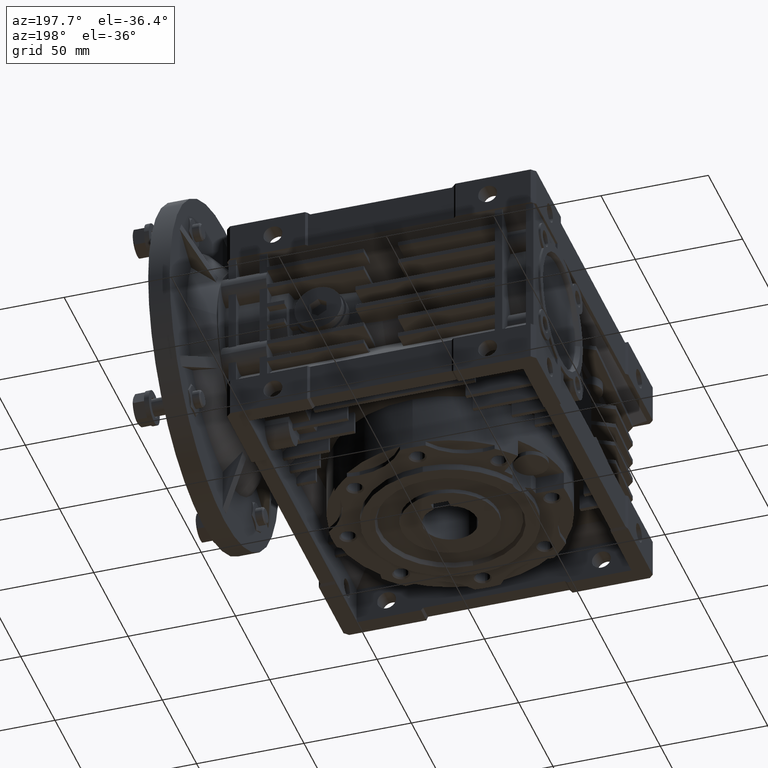
[diagram: clean part render]
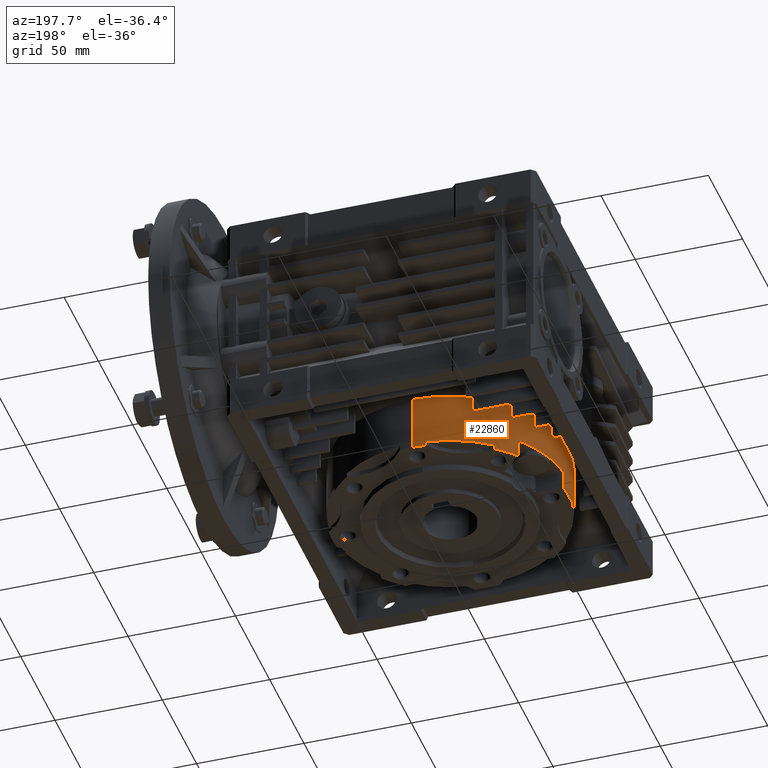
[diagram: same view with one face highlighted and labeled with its STEP entity id]
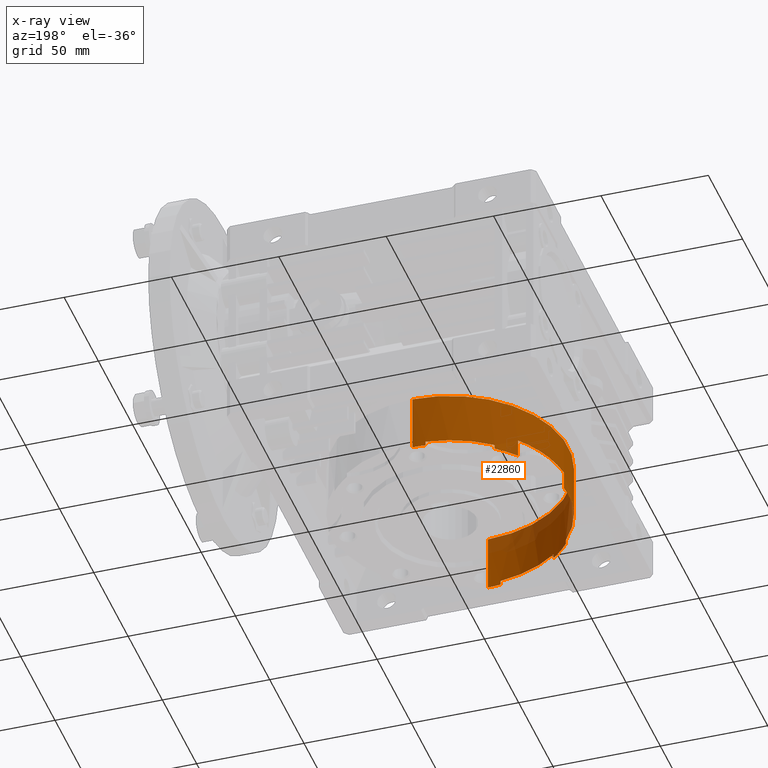
[diagram: x-ray of the same camera — body ghosted, the highlighted face saturated]
A machine part, auxiliary view. The second image highlights one B-rep face of the part: STEP entity #22860.
The next image is the same camera in x-ray: the body ghosted, the highlighted face saturated — about 11% of this face is hidden behind the body in this view.
In plain terms, the highlighted cylindrical surface (partial cylindrical patch) has radius 55 mm, axis along (0, 0, 1).
Its self-contained STEP definition (entity closure, byte-faithful):
#172 = DIRECTION ( 'NONE',  ( 0.000000000000000000, 1.000000000000000000, 0.000000000000000000 ) ) ;
#574 = DIRECTION ( 'NONE',  ( 0.000000000000000000, 0.000000000000000000, 1.000000000000000000 ) ) ;
#1051 = DIRECTION ( 'NONE',  ( 0.000000000000000000, 0.000000000000000000, -1.000000000000000000 ) ) ;
#1450 = CYLINDRICAL_SURFACE ( 'NONE', #19564, 55.00000000000000000 ) ;
#1588 = VERTEX_POINT ( 'NONE', #8071 ) ;
#1943 = LINE ( 'NONE', #17047, #5228 ) ;
#2164 = VECTOR ( 'NONE', #38606, 1000.000000000000000 ) ;
#2265 = AXIS2_PLACEMENT_3D ( 'NONE', #4134, #4639, #19014 ) ;
#2553 = CARTESIAN_POINT ( 'NONE',  ( 0.000000000000000000, 0.000000000000000000, -53.00000000000000000 ) ) ;
#2811 = CARTESIAN_POINT ( 'NONE',  ( 0.000000000000000000, 55.00000000000000000, -26.55000000000000071 ) ) ;
#2931 = EDGE_CURVE ( 'NONE', #9064, #8320, #21399, .T. ) ;
#2961 = CIRCLE ( 'NONE', #29381, 55.00000000000000000 ) ;
#3001 = CARTESIAN_POINT ( 'NONE',  ( -54.67156926801519745, -6.001625927414619532, -51.00000000000000000 ) ) ;
#3658 = VERTEX_POINT ( 'NONE', #6477 ) ;
#3728 = EDGE_CURVE ( 'NONE', #29326, #1588, #6010, .T. ) ;
#4134 = CARTESIAN_POINT ( 'NONE',  ( 0.000000000000000000, 0.000000000000000000, -51.00000000000000000 ) ) ;
#4226 = DIRECTION ( 'NONE',  ( 0.000000000000000000, 1.000000000000000000, 0.000000000000000000 ) ) ;
#4362 = DIRECTION ( 'NONE',  ( 0.000000000000000000, 0.000000000000000000, 1.000000000000000000 ) ) ;
#4389 = VECTOR ( 'NONE', #38037, 1000.000000000000000 ) ;
#4625 = ORIENTED_EDGE ( 'NONE', *, *, #3728, .T. ) ;
#4639 = DIRECTION ( 'NONE',  ( 0.000000000000000000, 0.000000000000000000, 1.000000000000000000 ) ) ;
#5105 = EDGE_CURVE ( 'NONE', #12362, #35046, #32606, .T. ) ;
#5156 = CARTESIAN_POINT ( 'NONE',  ( -54.71416635570719933, 5.599999999999999645, -56.00000000000000000 ) ) ;
#5228 = VECTOR ( 'NONE', #38220, 1000.000000000000000 ) ;
#5663 = DIRECTION ( 'NONE',  ( 0.000000000000000000, 0.000000000000000000, 1.000000000000000000 ) ) ;
#5715 = CARTESIAN_POINT ( 'NONE',  ( 0.000000000000000000, 0.000000000000000000, -51.00000000000000000 ) ) ;
#5834 = DIRECTION ( 'NONE',  ( 0.000000000000000000, 0.000000000000000000, 1.000000000000000000 ) ) ;
#6010 = CIRCLE ( 'NONE', #18465, 55.00000000000000000 ) ;
#6106 = AXIS2_PLACEMENT_3D ( 'NONE', #5715, #35694, #16923 ) ;
#6363 = DIRECTION ( 'NONE',  ( 0.000000000000000000, 0.000000000000000000, -1.000000000000000000 ) ) ;
#6477 = CARTESIAN_POINT ( 'NONE',  ( -34.41484697610369636, 42.90242775894350302, -53.00000000000000000 ) ) ;
#6929 = VERTEX_POINT ( 'NONE', #34714 ) ;
#7068 = CARTESIAN_POINT ( 'NONE',  ( 0.000000000000000000, 0.000000000000000000, -53.00000000000000000 ) ) ;
#8071 = CARTESIAN_POINT ( 'NONE',  ( -34.41484697610369636, 42.90242775894350302, -51.00000000000000000 ) ) ;
#8320 = VERTEX_POINT ( 'NONE', #45559 ) ;
#8403 = ORIENTED_EDGE ( 'NONE', *, *, #16039, .T. ) ;
#8533 = LINE ( 'NONE', #5156, #4389 ) ;
#8896 = DIRECTION ( 'NONE',  ( 0.000000000000000000, 0.000000000000000000, -1.000000000000000000 ) ) ;
#9064 = VERTEX_POINT ( 'NONE', #32355 ) ;
#9279 = CARTESIAN_POINT ( 'NONE',  ( -6.735557395310442615E-15, -55.00000000000000000, -53.00000000000000000 ) ) ;
#9537 = DIRECTION ( 'NONE',  ( 0.000000000000000000, 1.000000000000000000, 0.000000000000000000 ) ) ;
#9608 = ORIENTED_EDGE ( 'NONE', *, *, #47049, .F. ) ;
#9769 = VERTEX_POINT ( 'NONE', #9279 ) ;
#9791 = AXIS2_PLACEMENT_3D ( 'NONE', #46608, #13243, #28115 ) ;
#9987 = VECTOR ( 'NONE', #1051, 1000.000000000000000 ) ;
#10081 = VERTEX_POINT ( 'NONE', #31857 ) ;
#10110 = LINE ( 'NONE', #25683, #38600 ) ;
#10707 = DIRECTION ( 'NONE',  ( 0.000000000000000000, 1.000000000000000000, 0.000000000000000000 ) ) ;
#11490 = CIRCLE ( 'NONE', #41068, 55.00000000000000000 ) ;
#11862 = VECTOR ( 'NONE', #28042, 1000.000000000000000 ) ;
#12221 = CARTESIAN_POINT ( 'NONE',  ( -42.64855603173409548, 34.72896008244470067, -61.50000000000000000 ) ) ;
#12360 = CARTESIAN_POINT ( 'NONE',  ( -6.001625927414629302, -54.67156926801519745, -53.00000000000000000 ) ) ;
#12362 = VERTEX_POINT ( 'NONE', #28899 ) ;
#12733 = VERTEX_POINT ( 'NONE', #26663 ) ;
#12753 = LINE ( 'NONE', #41090, #2164 ) ;
#13243 = DIRECTION ( 'NONE',  ( 0.000000000000000000, 0.000000000000000000, 1.000000000000000000 ) ) ;
#13443 = EDGE_CURVE ( 'NONE', #15393, #6929, #10110, .T. ) ;
#13895 = LINE ( 'NONE', #18068, #36393 ) ;
#14024 = EDGE_CURVE ( 'NONE', #15069, #9064, #8533, .T. ) ;
#14108 = CIRCLE ( 'NONE', #38242, 55.00000000000000000 ) ;
#14285 = ORIENTED_EDGE ( 'NONE', *, *, #13443, .T. ) ;
#14653 = EDGE_CURVE ( 'NONE', #3658, #10081, #44020, .T. ) ;
#14693 = CARTESIAN_POINT ( 'NONE',  ( 0.000000000000000000, 55.00000000000000000, -53.00000000000000000 ) ) ;
#15069 = VERTEX_POINT ( 'NONE', #20389 ) ;
#15393 = VERTEX_POINT ( 'NONE', #26383 ) ;
#15643 = DIRECTION ( 'NONE',  ( 0.000000000000000000, 0.000000000000000000, -1.000000000000000000 ) ) ;
#15976 = ORIENTED_EDGE ( 'NONE', *, *, #34432, .T. ) ;
#16039 = EDGE_CURVE ( 'NONE', #35046, #32458, #13895, .T. ) ;
#16377 = CARTESIAN_POINT ( 'NONE',  ( 0.000000000000000000, 0.000000000000000000, -44.50000000000000000 ) ) ;
#16503 = EDGE_CURVE ( 'NONE', #9769, #36341, #12753, .T. ) ;
#16559 = EDGE_CURVE ( 'NONE', #36341, #35747, #2961, .T. ) ;
#16789 = DIRECTION ( 'NONE',  ( 0.000000000000000000, 0.000000000000000000, -1.000000000000000000 ) ) ;
#16923 = DIRECTION ( 'NONE',  ( 0.000000000000000000, 1.000000000000000000, 0.000000000000000000 ) ) ;
#17047 = CARTESIAN_POINT ( 'NONE',  ( 0.000000000000000000, 55.00000000000000000, -56.00000000000000000 ) ) ;
#17841 = ORIENTED_EDGE ( 'NONE', *, *, #14024, .T. ) ;
#18068 = CARTESIAN_POINT ( 'NONE',  ( -6.001625927414659500, -54.67156926801519745, -56.00000000000000000 ) ) ;
#18465 = AXIS2_PLACEMENT_3D ( 'NONE', #45619, #574, #4226 ) ;
#18557 = EDGE_CURVE ( 'NONE', #46689, #29326, #29185, .T. ) ;
#19014 = DIRECTION ( 'NONE',  ( 0.000000000000000000, 1.000000000000000000, 0.000000000000000000 ) ) ;
#19101 = VERTEX_POINT ( 'NONE', #30192 ) ;
#19564 = AXIS2_PLACEMENT_3D ( 'NONE', #20214, #5834, #35566 ) ;
#20121 = CIRCLE ( 'NONE', #46539, 55.00000000000000000 ) ;
#20214 = CARTESIAN_POINT ( 'NONE',  ( 0.000000000000000000, 0.000000000000000000, -56.00000000000000000 ) ) ;
#20389 = CARTESIAN_POINT ( 'NONE',  ( -54.71416635570719933, 5.599999999999999645, -44.50000000000000000 ) ) ;
#20601 = DIRECTION ( 'NONE',  ( 0.000000000000000000, 0.000000000000000000, 1.000000000000000000 ) ) ;
#20622 = EDGE_LOOP ( 'NONE', ( #33497, #25559, #27504, #30626, #33106, #20879, #4625, #22948, #32784, #27708, #9608, #17841, #40155, #15976, #43765, #14285, #30476, #38228, #24797, #8403 ) ) ;
#20860 = CARTESIAN_POINT ( 'NONE',  ( -6.735557395310442615E-15, -55.00000000000000000, -26.55000000000000071 ) ) ;
#20879 = ORIENTED_EDGE ( 'NONE', *, *, #18557, .T. ) ;
#20925 = VECTOR ( 'NONE', #40065, 1000.000000000000000 ) ;
#21151 = VECTOR ( 'NONE', #44505, 1000.000000000000000 ) ;
#21399 = CIRCLE ( 'NONE', #42467, 55.00000000000000000 ) ;
#21949 = DIRECTION ( 'NONE',  ( 0.000000000000000000, 0.000000000000000000, 1.000000000000000000 ) ) ;
#22190 = VERTEX_POINT ( 'NONE', #3001 ) ;
#22457 = CIRCLE ( 'NONE', #2265, 55.00000000000000000 ) ;
#22628 = EDGE_CURVE ( 'NONE', #32458, #9769, #14108, .T. ) ;
#22860 = ADVANCED_FACE ( 'NONE', ( #34823 ), #1450, .T. ) ;
#22948 = ORIENTED_EDGE ( 'NONE', *, *, #29311, .T. ) ;
#23533 = CARTESIAN_POINT ( 'NONE',  ( -34.41484697610369636, 42.90242775894350302, -56.00000000000000000 ) ) ;
#24797 = ORIENTED_EDGE ( 'NONE', *, *, #5105, .T. ) ;
#25559 = ORIENTED_EDGE ( 'NONE', *, *, #16503, .T. ) ;
#25683 = CARTESIAN_POINT ( 'NONE',  ( -42.90242775894350302, -34.41484697610369636, -56.00000000000000000 ) ) ;
#26006 = DIRECTION ( 'NONE',  ( 0.000000000000000000, 0.000000000000000000, -1.000000000000000000 ) ) ;
#26383 = CARTESIAN_POINT ( 'NONE',  ( -42.90242775894350302, -34.41484697610369636, -51.00000000000000000 ) ) ;
#26663 = CARTESIAN_POINT ( 'NONE',  ( -42.64855603173409548, 34.72896008244470067, -44.50000000000000000 ) ) ;
#27504 = ORIENTED_EDGE ( 'NONE', *, *, #16559, .T. ) ;
#27708 = ORIENTED_EDGE ( 'NONE', *, *, #39616, .F. ) ;
#28042 = DIRECTION ( 'NONE',  ( 0.000000000000000000, 0.000000000000000000, 1.000000000000000000 ) ) ;
#28115 = DIRECTION ( 'NONE',  ( 0.000000000000000000, 1.000000000000000000, 0.000000000000000000 ) ) ;
#28293 = CARTESIAN_POINT ( 'NONE',  ( 0.000000000000000000, 0.000000000000000000, -53.00000000000000000 ) ) ;
#28295 = EDGE_CURVE ( 'NONE', #35717, #35747, #1943, .T. ) ;
#28760 = AXIS2_PLACEMENT_3D ( 'NONE', #37733, #4362, #10707 ) ;
#28899 = CARTESIAN_POINT ( 'NONE',  ( -34.41484697610369636, -42.90242775894350302, -51.00000000000000000 ) ) ;
#29185 = LINE ( 'NONE', #44962, #21151 ) ;
#29311 = EDGE_CURVE ( 'NONE', #1588, #3658, #45191, .T. ) ;
#29326 = VERTEX_POINT ( 'NONE', #41807 ) ;
#29381 = AXIS2_PLACEMENT_3D ( 'NONE', #33572, #26006, #172 ) ;
#30192 = CARTESIAN_POINT ( 'NONE',  ( -34.41484697610369636, -42.90242775894350302, -53.00000000000000000 ) ) ;
#30371 = EDGE_CURVE ( 'NONE', #6929, #19101, #31082, .T. ) ;
#30476 = ORIENTED_EDGE ( 'NONE', *, *, #30371, .T. ) ;
#30626 = ORIENTED_EDGE ( 'NONE', *, *, #28295, .F. ) ;
#31082 = CIRCLE ( 'NONE', #28760, 55.00000000000000000 ) ;
#31857 = CARTESIAN_POINT ( 'NONE',  ( -42.64855603173409548, 34.72896008244470067, -53.00000000000000000 ) ) ;
#32355 = CARTESIAN_POINT ( 'NONE',  ( -54.71416635570719933, 5.599999999999999645, -53.00000000000000000 ) ) ;
#32458 = VERTEX_POINT ( 'NONE', #12360 ) ;
#32522 = LINE ( 'NONE', #39819, #20925 ) ;
#32606 = CIRCLE ( 'NONE', #6106, 55.00000000000000000 ) ;
#32784 = ORIENTED_EDGE ( 'NONE', *, *, #14653, .T. ) ;
#33106 = ORIENTED_EDGE ( 'NONE', *, *, #46801, .T. ) ;
#33497 = ORIENTED_EDGE ( 'NONE', *, *, #22628, .T. ) ;
#33572 = CARTESIAN_POINT ( 'NONE',  ( 0.000000000000000000, 0.000000000000000000, -26.55000000000000071 ) ) ;
#34432 = EDGE_CURVE ( 'NONE', #8320, #22190, #38532, .T. ) ;
#34572 = DIRECTION ( 'NONE',  ( 0.000000000000000000, 1.000000000000000000, 0.000000000000000000 ) ) ;
#34714 = CARTESIAN_POINT ( 'NONE',  ( -42.90242775894350302, -34.41484697610369636, -53.00000000000000000 ) ) ;
#34823 = FACE_OUTER_BOUND ( 'NONE', #20622, .T. ) ;
#35046 = VERTEX_POINT ( 'NONE', #43014 ) ;
#35566 = DIRECTION ( 'NONE',  ( 0.000000000000000000, 1.000000000000000000, 0.000000000000000000 ) ) ;
#35694 = DIRECTION ( 'NONE',  ( 0.000000000000000000, 0.000000000000000000, 1.000000000000000000 ) ) ;
#35717 = VERTEX_POINT ( 'NONE', #14693 ) ;
#35747 = VERTEX_POINT ( 'NONE', #2811 ) ;
#36341 = VERTEX_POINT ( 'NONE', #20860 ) ;
#36393 = VECTOR ( 'NONE', #6363, 1000.000000000000000 ) ;
#37733 = CARTESIAN_POINT ( 'NONE',  ( 0.000000000000000000, 0.000000000000000000, -53.00000000000000000 ) ) ;
#38037 = DIRECTION ( 'NONE',  ( 0.000000000000000000, 0.000000000000000000, -1.000000000000000000 ) ) ;
#38119 = CARTESIAN_POINT ( 'NONE',  ( -6.001625927414589334, 54.67156926801519745, -53.00000000000000000 ) ) ;
#38220 = DIRECTION ( 'NONE',  ( 0.000000000000000000, 0.000000000000000000, 1.000000000000000000 ) ) ;
#38228 = ORIENTED_EDGE ( 'NONE', *, *, #46819, .T. ) ;
#38242 = AXIS2_PLACEMENT_3D ( 'NONE', #7068, #21949, #34572 ) ;
#38282 = CARTESIAN_POINT ( 'NONE',  ( -54.67156926801519745, -6.001625927414639960, -56.00000000000000000 ) ) ;
#38296 = DIRECTION ( 'NONE',  ( 1.776356839400250070E-15, 1.000000000000000000, 0.000000000000000000 ) ) ;
#38532 = LINE ( 'NONE', #38282, #11862 ) ;
#38563 = LINE ( 'NONE', #12221, #9987 ) ;
#38600 = VECTOR ( 'NONE', #16789, 1000.000000000000000 ) ;
#38606 = DIRECTION ( 'NONE',  ( 0.000000000000000000, 0.000000000000000000, 1.000000000000000000 ) ) ;
#39616 = EDGE_CURVE ( 'NONE', #12733, #10081, #38563, .T. ) ;
#39819 = CARTESIAN_POINT ( 'NONE',  ( -34.41484697610369636, -42.90242775894350302, -56.00000000000000000 ) ) ;
#40065 = DIRECTION ( 'NONE',  ( 0.000000000000000000, 0.000000000000000000, 1.000000000000000000 ) ) ;
#40108 = EDGE_CURVE ( 'NONE', #22190, #15393, #22457, .T. ) ;
#40155 = ORIENTED_EDGE ( 'NONE', *, *, #2931, .T. ) ;
#41068 = AXIS2_PLACEMENT_3D ( 'NONE', #2553, #20601, #43228 ) ;
#41090 = CARTESIAN_POINT ( 'NONE',  ( -6.735557395310442615E-15, -55.00000000000000000, -56.00000000000000000 ) ) ;
#41807 = CARTESIAN_POINT ( 'NONE',  ( -6.001625927414589334, 54.67156926801519745, -51.00000000000000000 ) ) ;
#42467 = AXIS2_PLACEMENT_3D ( 'NONE', #28293, #5663, #9537 ) ;
#43014 = CARTESIAN_POINT ( 'NONE',  ( -6.001625927414629302, -54.67156926801519745, -51.00000000000000000 ) ) ;
#43228 = DIRECTION ( 'NONE',  ( 0.000000000000000000, 1.000000000000000000, 0.000000000000000000 ) ) ;
#43765 = ORIENTED_EDGE ( 'NONE', *, *, #40108, .T. ) ;
#44020 = CIRCLE ( 'NONE', #9791, 55.00000000000000000 ) ;
#44505 = DIRECTION ( 'NONE',  ( 0.000000000000000000, 0.000000000000000000, 1.000000000000000000 ) ) ;
#44962 = CARTESIAN_POINT ( 'NONE',  ( -6.001625927414580453, 54.67156926801519745, -56.00000000000000000 ) ) ;
#45191 = LINE ( 'NONE', #23533, #47295 ) ;
#45559 = CARTESIAN_POINT ( 'NONE',  ( -54.67156926801519745, -6.001625927414619532, -53.00000000000000000 ) ) ;
#45619 = CARTESIAN_POINT ( 'NONE',  ( 0.000000000000000000, 0.000000000000000000, -51.00000000000000000 ) ) ;
#46539 = AXIS2_PLACEMENT_3D ( 'NONE', #16377, #15643, #38296 ) ;
#46608 = CARTESIAN_POINT ( 'NONE',  ( 0.000000000000000000, 0.000000000000000000, -53.00000000000000000 ) ) ;
#46689 = VERTEX_POINT ( 'NONE', #38119 ) ;
#46801 = EDGE_CURVE ( 'NONE', #35717, #46689, #11490, .T. ) ;
#46819 = EDGE_CURVE ( 'NONE', #19101, #12362, #32522, .T. ) ;
#47049 = EDGE_CURVE ( 'NONE', #15069, #12733, #20121, .T. ) ;
#47295 = VECTOR ( 'NONE', #8896, 1000.000000000000000 ) ;